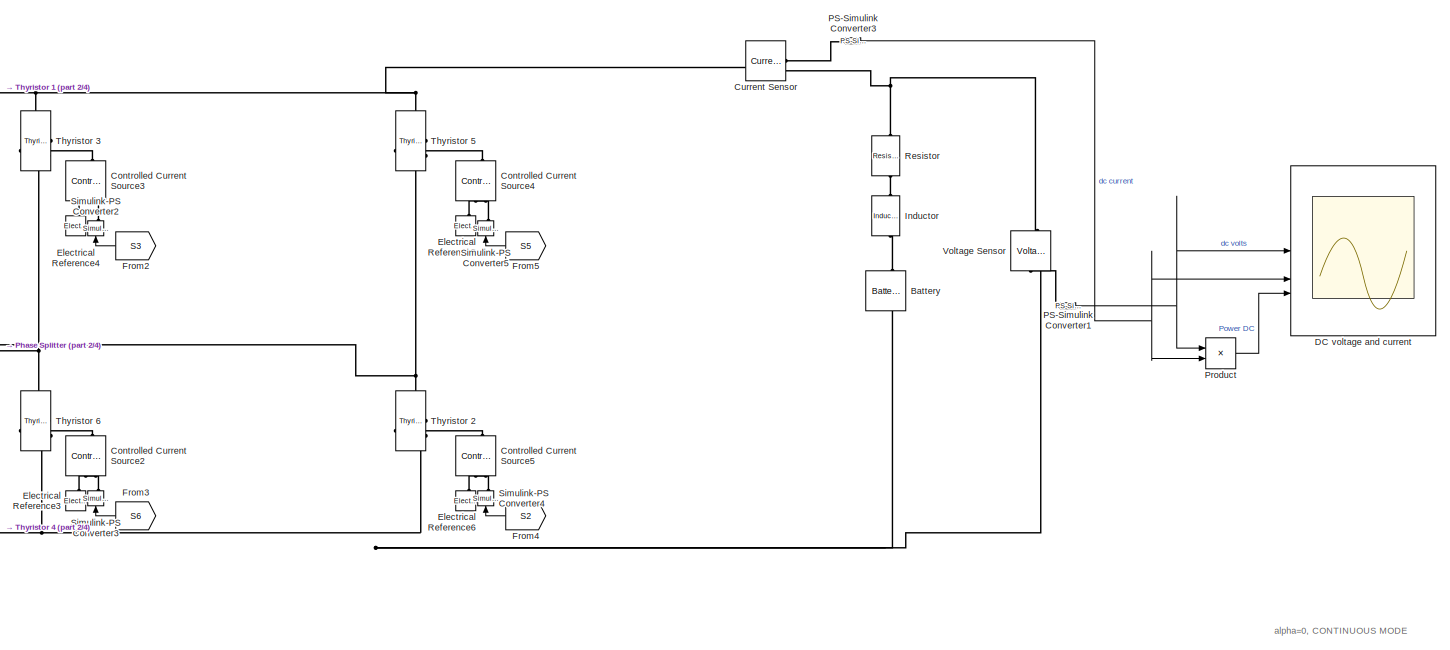
[diagram: root canvas - part 1/4, top center region]
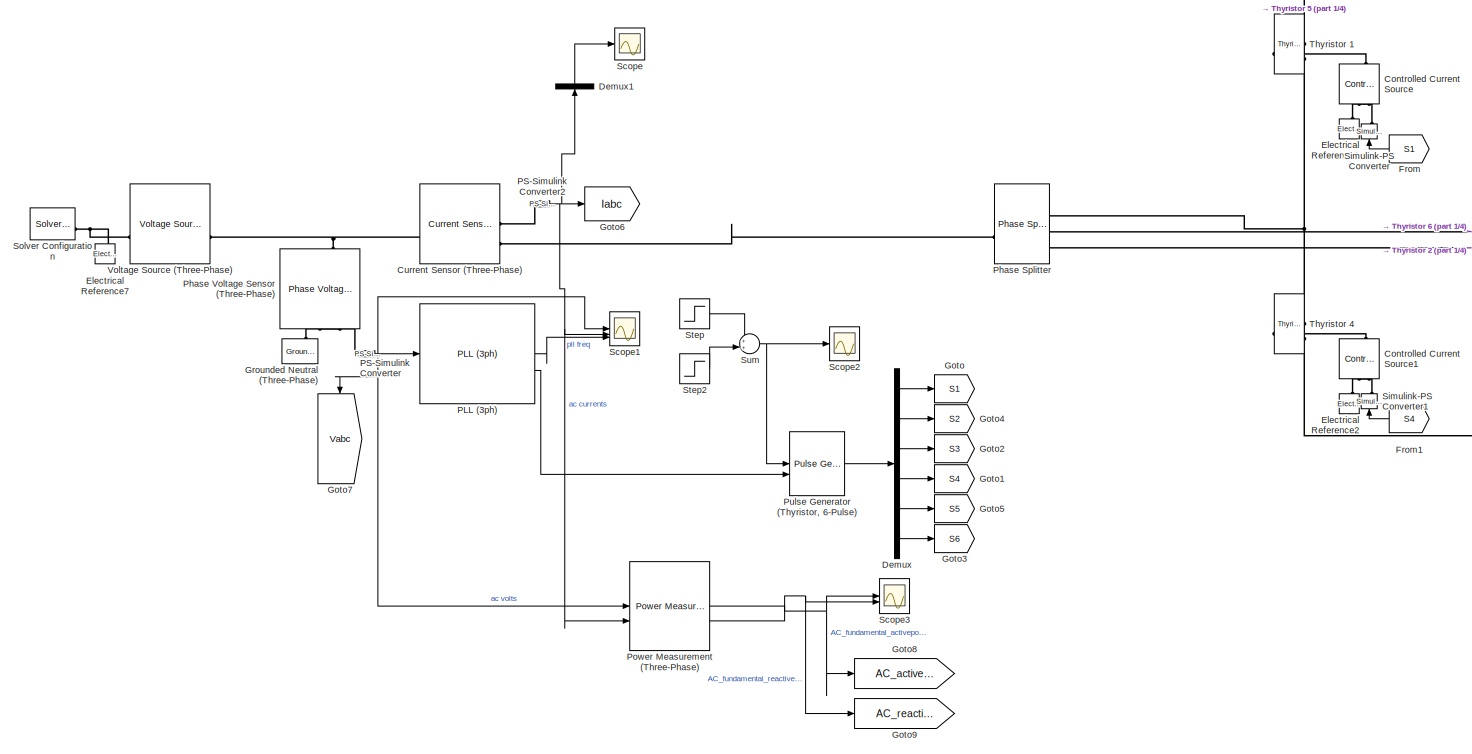
[diagram: root canvas - part 2/4, middle left region]
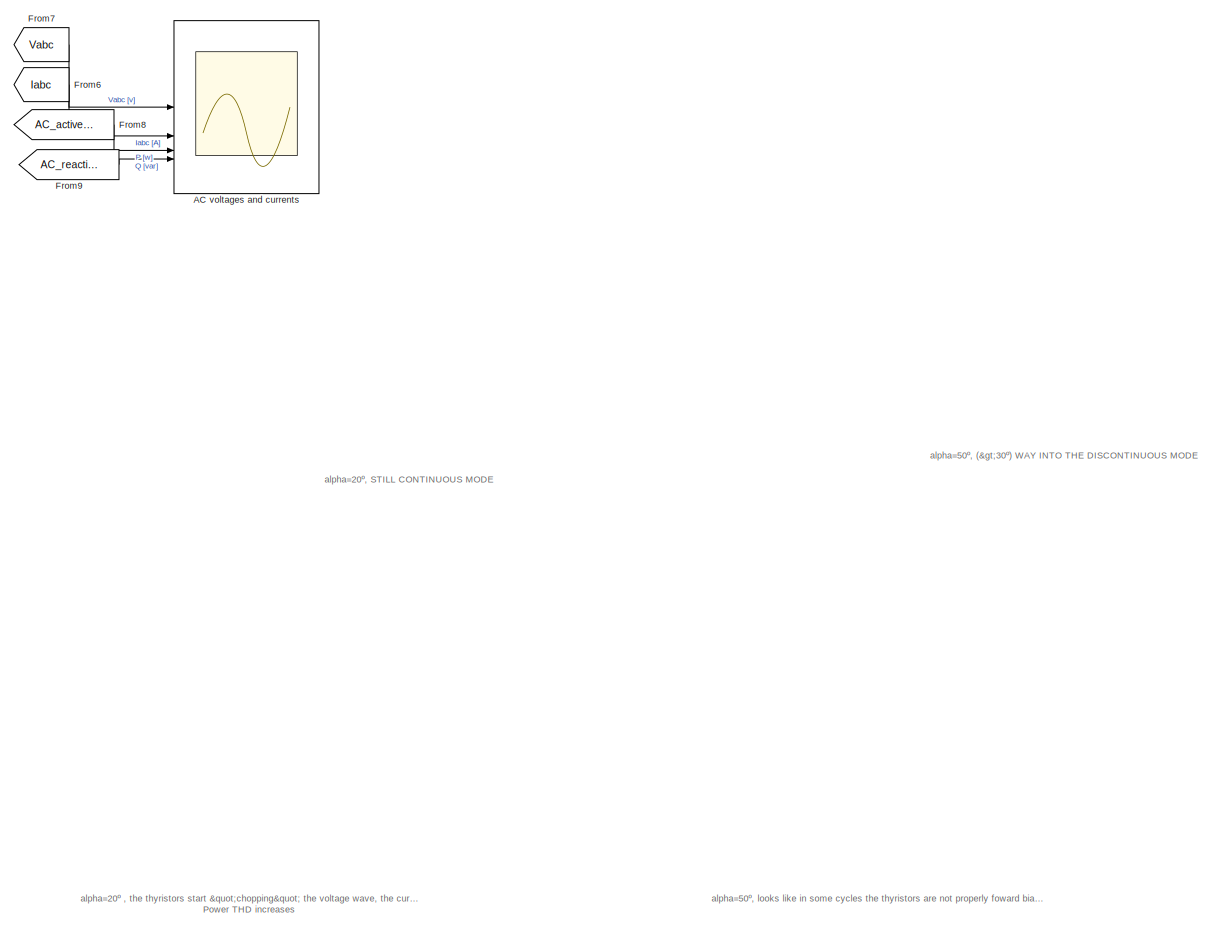
[diagram: root canvas - part 3/4, right side, full height]
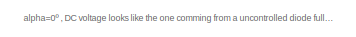
[diagram: root canvas - part 4/4, bottom center region]
MODEL slx_8790b56b9ad7
KIND model
CONFIG AbsTol = auto
CONFIG EnableMultiTasking = off
CONFIG FixedStep = 50e-6
CONFIG MaxStep = auto
CONFIG MinStep = auto
CONFIG RelTol = 1e-3
CONFIG SampleTimeConstraint = Unconstrained
CONFIG SolverName = ode1be
CONFIG StartTime = 0.0
CONFIG StopTime = sim_time
BLOCK [Scope] AC voltages and currents
  Floating = off
  NumInputPorts = 4
  ScopeSpecificationString = Simulink.scopes.TimeScopeBlockCfg('CurrentConfiguration', extmgr.ConfigurationSet(extmgr.Configuration('Core','General UI',true),extmgr.Configuration('Core','Source UI',true),extmgr.Configuration('Sources','WiredSimulink',true,'DataLoggingVariableName','ScopeData1'),extmgr.Configuration('Visuals','Time Domain',true,'SerializedDisplays',{struct('MinYLimReal','-6123.72436','MaxYLimReal','6123.72436'...<+3560ch>
BLOCK [Reference] Battery  REF=batteryecm_lib/Battery
  LibrarySourceBlock = ee_lib/Sources/Battery
  NameLocation = right
  SourceBlock = batteryecm_lib/Battery
  SourceType = Battery
BLOCK [Reference] Controlled Current Source  REF=fl_lib/Electrical/Electrical Sources/Controlled Current
Source
  NameLocation = right
  SourceBlock = fl_lib/Electrical/Electrical Sources/Controlled Current\nSource
  SourceType = Controlled Current\nSource
BLOCK [Reference] Controlled Current Source1  REF=fl_lib/Electrical/Electrical Sources/Controlled Current
Source
  NameLocation = right
  SourceBlock = fl_lib/Electrical/Electrical Sources/Controlled Current\nSource
  SourceType = Controlled Current\nSource
BLOCK [Reference] Controlled Current Source2  REF=fl_lib/Electrical/Electrical Sources/Controlled Current
Source
  NameLocation = right
  SourceBlock = fl_lib/Electrical/Electrical Sources/Controlled Current\nSource
  SourceType = Controlled Current\nSource
BLOCK [Reference] Controlled Current Source3  REF=fl_lib/Electrical/Electrical Sources/Controlled Current
Source
  NameLocation = right
  SourceBlock = fl_lib/Electrical/Electrical Sources/Controlled Current\nSource
  SourceType = Controlled Current\nSource
BLOCK [Reference] Controlled Current Source4  REF=fl_lib/Electrical/Electrical Sources/Controlled Current
Source
  NameLocation = right
  SourceBlock = fl_lib/Electrical/Electrical Sources/Controlled Current\nSource
  SourceType = Controlled Current\nSource
BLOCK [Reference] Controlled Current Source5  REF=fl_lib/Electrical/Electrical Sources/Controlled Current
Source
  NameLocation = right
  SourceBlock = fl_lib/Electrical/Electrical Sources/Controlled Current\nSource
  SourceType = Controlled Current\nSource
BLOCK [Reference] Current Sensor  REF=fl_lib/Electrical/Electrical Sensors/Current Sensor
  SourceBlock = fl_lib/Electrical/Electrical Sensors/Current Sensor
  SourceType = Current Sensor
BLOCK [Reference] Current Sensor (Three-Phase)  REF=ee_lib/Sensors &
Transducers/Current Sensor
(Three-Phase)
  SourceBlock = ee_lib/Sensors &\nTransducers/Current Sensor\n(Three-Phase)
  SourceType = Current Sensor\n(Three-Phase)
BLOCK [Scope] DC voltage and current
  Floating = off
  NumInputPorts = 3
  ScopeSpecificationString = Simulink.scopes.TimeScopeBlockCfg('CurrentConfiguration', extmgr.ConfigurationSet(extmgr.Configuration('Core','General UI',true),extmgr.Configuration('Core','Source UI',true),extmgr.Configuration('Sources','WiredSimulink',true),extmgr.Configuration('Visuals','Time Domain',true,'SerializedDisplays',{struct('MinYLimReal','-469.21119','MaxYLimReal','22158.81451','YLabelReal','','MinYLimMag',' 0.00000...<+2746ch>
BLOCK [Demux] Demux
  Outputs = 6
BLOCK [Demux] Demux1
  NameLocation = right
  Outputs = 3
BLOCK [Reference] Electrical Reference1  REF=fl_lib/Electrical/Electrical Elements/Electrical Reference
  NameLocation = right
  SourceBlock = fl_lib/Electrical/Electrical Elements/Electrical Reference
  SourceType = Electrical Reference
BLOCK [Reference] Electrical Reference2  REF=fl_lib/Electrical/Electrical Elements/Electrical Reference
  NameLocation = right
  SourceBlock = fl_lib/Electrical/Electrical Elements/Electrical Reference
  SourceType = Electrical Reference
BLOCK [Reference] Electrical Reference3  REF=fl_lib/Electrical/Electrical Elements/Electrical Reference
  NameLocation = right
  SourceBlock = fl_lib/Electrical/Electrical Elements/Electrical Reference
  SourceType = Electrical Reference
BLOCK [Reference] Electrical Reference4  REF=fl_lib/Electrical/Electrical Elements/Electrical Reference
  NameLocation = right
  SourceBlock = fl_lib/Electrical/Electrical Elements/Electrical Reference
  SourceType = Electrical Reference
BLOCK [Reference] Electrical Reference5  REF=fl_lib/Electrical/Electrical Elements/Electrical Reference
  NameLocation = right
  SourceBlock = fl_lib/Electrical/Electrical Elements/Electrical Reference
  SourceType = Electrical Reference
BLOCK [Reference] Electrical Reference6  REF=fl_lib/Electrical/Electrical Elements/Electrical Reference
  NameLocation = right
  SourceBlock = fl_lib/Electrical/Electrical Elements/Electrical Reference
  SourceType = Electrical Reference
BLOCK [Reference] Electrical Reference7  REF=fl_lib/Electrical/Electrical Elements/Electrical Reference
  NameLocation = right
  SourceBlock = fl_lib/Electrical/Electrical Elements/Electrical Reference
  SourceType = Electrical Reference
BLOCK [From] From
  GotoTag = S1
  NameLocation = top
BLOCK [From] From1
  GotoTag = S4
  NameLocation = top
BLOCK [From] From2
  GotoTag = S3
  NameLocation = top
BLOCK [From] From3
  GotoTag = S6
  NameLocation = top
BLOCK [From] From4
  GotoTag = S2
  NameLocation = top
BLOCK [From] From5
  GotoTag = S5
  NameLocation = top
BLOCK [From] From6
  GotoTag = Iabc
BLOCK [From] From7
  GotoTag = Vabc
BLOCK [From] From8
  GotoTag = AC_active_power
BLOCK [From] From9
  GotoTag = AC_reactive_power
BLOCK [Goto] Goto
  GotoTag = S1
  NameLocation = top
BLOCK [Goto] Goto1
  GotoTag = S4
  NameLocation = top
BLOCK [Goto] Goto2
  GotoTag = S3
  NameLocation = top
BLOCK [Goto] Goto3
  GotoTag = S6
  NameLocation = top
BLOCK [Goto] Goto4
  GotoTag = S2
  NameLocation = top
BLOCK [Goto] Goto5
  GotoTag = S5
  NameLocation = top
BLOCK [Goto] Goto6
  GotoTag = Iabc
  NameLocation = top
BLOCK [Goto] Goto7
  GotoTag = Vabc
  NameLocation = right
BLOCK [Goto] Goto8
  GotoTag = AC_active_power
  NameLocation = top
BLOCK [Goto] Goto9
  GotoTag = AC_reactive_power
  NameLocation = top
BLOCK [Reference] Grounded Neutral (Three-Phase)  REF=ee_lib/Connectors &
References/Grounded Neutral
(Three-Phase)
  NameLocation = right
  SourceBlock = ee_lib/Connectors &\nReferences/Grounded Neutral\n(Three-Phase)
  SourceType = Grounded Neutral\n(Three-Phase)
BLOCK [Reference] Inductor  REF=fl_lib/Electrical/Electrical Elements/Inductor
  NameLocation = left
  SourceBlock = fl_lib/Electrical/Electrical Elements/Inductor
  SourceType = Inductor
BLOCK [Reference] PLL (3ph)  REF=spsPLL3phLib/PLL
(3ph)
  LibrarySourceBlock = sps_lib/Control/PLL\n(3ph)
  SourceBlock = spsPLL3phLib/PLL\n(3ph)
  SourceType = PLL (3ph)
BLOCK [Reference] PS-Simulink Converter  REF=nesl_utility/PS-Simulink
Converter
  SourceBlock = nesl_utility/PS-Simulink\nConverter
  SourceType = PS-Simulink\nConverter
BLOCK [Reference] PS-Simulink Converter1  REF=nesl_utility/PS-Simulink
Converter
  SourceBlock = nesl_utility/PS-Simulink\nConverter
  SourceType = PS-Simulink\nConverter
BLOCK [Reference] PS-Simulink Converter2  REF=nesl_utility/PS-Simulink
Converter
  SourceBlock = nesl_utility/PS-Simulink\nConverter
  SourceType = PS-Simulink\nConverter
BLOCK [Reference] PS-Simulink Converter3  REF=nesl_utility/PS-Simulink
Converter
  SourceBlock = nesl_utility/PS-Simulink\nConverter
  SourceType = PS-Simulink\nConverter
BLOCK [Reference] Phase Splitter  REF=ee_lib/Connectors &
References/Phase Splitter
  SourceBlock = ee_lib/Connectors &\nReferences/Phase Splitter
  SourceType = Phase Splitter
BLOCK [Reference] Phase Voltage Sensor (Three-Phase)  REF=ee_lib/Sensors &
Transducers/Phase Voltage Sensor
(Three-Phase)
  NameLocation = left
  SourceBlock = ee_lib/Sensors &\nTransducers/Phase Voltage Sensor\n(Three-Phase)
  SourceType = Phase Voltage Sensor\n(Three-Phase)
BLOCK [Reference] Power Measurement (Three-Phase)  REF=eePowerMeasurement/Power Measurement
(Three-Phase)
  LibrarySourceBlock = ee_sl_lib/Measurements/Power Measurement\n(Three-Phase)
  SourceBlock = eePowerMeasurement/Power Measurement\n(Three-Phase)
  SourceType = Power Measurement (Three-Phase)
BLOCK [Product] Product
BLOCK [Reference] Pulse Generator (Thyristor, 6-Pulse)  REF=spsPulseGeneratorThyristor6PulseLib/Pulse Generator
(Thyristor, 6-Pulse)
  LibrarySourceBlock = sps_lib/Power Electronics/Power Electronics Control/Pulse Generator\n(Thyristor, 6-Pulse)
  SourceBlock = spsPulseGeneratorThyristor6PulseLib/Pulse Generator\n(Thyristor, 6-Pulse)
  SourceType = Pulse Generator (Thyristor)
BLOCK [Reference] Resistor  REF=fl_lib/Electrical/Electrical Elements/Resistor
  NameLocation = left
  SourceBlock = fl_lib/Electrical/Electrical Elements/Resistor
  SourceType = Resistor
BLOCK [Scope] Scope
  Floating = off
  NumInputPorts = 1
  ScopeSpecificationString = Simulink.scopes.TimeScopeBlockCfg('CurrentConfiguration', extmgr.ConfigurationSet(extmgr.Configuration('Core','General UI',true),extmgr.Configuration('Core','Source UI',true),extmgr.Configuration('Sources','WiredSimulink',true,'DataLoggingVariableName','ScopeData1'),extmgr.Configuration('Visuals','Time Domain',true,'SerializedDisplays',{struct('MinYLimReal','-1188.18285','MaxYLimReal','1209.98526'...<+1489ch>
BLOCK [Scope] Scope1
  Floating = off
  NumInputPorts = 3
  ScopeSpecificationString = Simulink.scopes.TimeScopeBlockCfg('CurrentConfiguration', extmgr.ConfigurationSet(extmgr.Configuration('Core','General UI',true),extmgr.Configuration('Core','Source UI',true),extmgr.Configuration('Sources','WiredSimulink',true,'DataLoggingVariableName','ScopeData1'),extmgr.Configuration('Visuals','Time Domain',true,'SerializedDisplays',{struct('MinYLimReal','-9928.06491','MaxYLimReal','9213.81564'...<+2980ch>
BLOCK [Scope] Scope2
  Floating = off
  NumInputPorts = 1
  ScopeSpecificationString = Simulink.scopes.TimeScopeBlockCfg('CurrentConfiguration', extmgr.ConfigurationSet(extmgr.Configuration('Core','General UI',true),extmgr.Configuration('Core','Source UI',true),extmgr.Configuration('Sources','WiredSimulink',true,'DataLoggingVariableName','ScopeData2'),extmgr.Configuration('Visuals','Time Domain',true,'SerializedDisplays',{struct('MinYLimReal','-6.25','MaxYLimReal','56.25','YLabelRea...<+1471ch>
BLOCK [Scope] Scope3
  Floating = off
  NumInputPorts = 2
  ScopeSpecificationString = Simulink.scopes.TimeScopeBlockCfg('CurrentConfiguration', extmgr.ConfigurationSet(extmgr.Configuration('Core','General UI',true),extmgr.Configuration('Core','Source UI',true),extmgr.Configuration('Sources','WiredSimulink',true,'DataLoggingVariableName','ScopeData3'),extmgr.Configuration('Visuals','Time Domain',true,'SerializedDisplays',{struct('MinYLimReal','-15685504.98971','MaxYLimReal','1411695...<+2192ch>
BLOCK [Reference] Simulink-PS Converter  REF=nesl_utility/Simulink-PS
Converter
  NameLocation = right
  SourceBlock = nesl_utility/Simulink-PS\nConverter
  SourceType = Simulink-PS\nConverter
BLOCK [Reference] Simulink-PS Converter1  REF=nesl_utility/Simulink-PS
Converter
  NameLocation = right
  SourceBlock = nesl_utility/Simulink-PS\nConverter
  SourceType = Simulink-PS\nConverter
BLOCK [Reference] Simulink-PS Converter2  REF=nesl_utility/Simulink-PS
Converter
  NameLocation = right
  SourceBlock = nesl_utility/Simulink-PS\nConverter
  SourceType = Simulink-PS\nConverter
BLOCK [Reference] Simulink-PS Converter3  REF=nesl_utility/Simulink-PS
Converter
  NameLocation = right
  SourceBlock = nesl_utility/Simulink-PS\nConverter
  SourceType = Simulink-PS\nConverter
BLOCK [Reference] Simulink-PS Converter4  REF=nesl_utility/Simulink-PS
Converter
  NameLocation = right
  SourceBlock = nesl_utility/Simulink-PS\nConverter
  SourceType = Simulink-PS\nConverter
BLOCK [Reference] Simulink-PS Converter5  REF=nesl_utility/Simulink-PS
Converter
  NameLocation = right
  SourceBlock = nesl_utility/Simulink-PS\nConverter
  SourceType = Simulink-PS\nConverter
BLOCK [Reference] Solver Configuration  REF=nesl_utility/Solver
Configuration
  SourceBlock = nesl_utility/Solver\nConfiguration
  SourceType = Solver\nConfiguration
BLOCK [Step] Step
  After = alpha1
  SampleTime = 0
  Time = alpha_steptime1
BLOCK [Step] Step2
  After = alpha2-alpha1
  SampleTime = 0
  Time = alpha_steptime2
BLOCK [Sum] Sum
BLOCK [Reference] Thyristor 1  REF=ee_lib/Semiconductors &
Converters/Thyristor
  NameLocation = top
  SourceBlock = ee_lib/Semiconductors &\nConverters/Thyristor
  SourceType = Thyristor
BLOCK [Reference] Thyristor 2  REF=ee_lib/Semiconductors &
Converters/Thyristor
  NameLocation = top
  SourceBlock = ee_lib/Semiconductors &\nConverters/Thyristor
  SourceType = Thyristor
BLOCK [Reference] Thyristor 3  REF=ee_lib/Semiconductors &
Converters/Thyristor
  NameLocation = top
  SourceBlock = ee_lib/Semiconductors &\nConverters/Thyristor
  SourceType = Thyristor
BLOCK [Reference] Thyristor 4   REF=ee_lib/Semiconductors &
Converters/Thyristor
  NameLocation = top
  SourceBlock = ee_lib/Semiconductors &\nConverters/Thyristor
  SourceType = Thyristor
BLOCK [Reference] Thyristor 5  REF=ee_lib/Semiconductors &
Converters/Thyristor
  NameLocation = top
  SourceBlock = ee_lib/Semiconductors &\nConverters/Thyristor
  SourceType = Thyristor
BLOCK [Reference] Thyristor 6  REF=ee_lib/Semiconductors &
Converters/Thyristor
  NameLocation = top
  SourceBlock = ee_lib/Semiconductors &\nConverters/Thyristor
  SourceType = Thyristor
BLOCK [Reference] Voltage Sensor  REF=fl_lib/Electrical/Electrical Sensors/Voltage Sensor
  NameLocation = left
  SourceBlock = fl_lib/Electrical/Electrical Sensors/Voltage Sensor
  SourceType = Voltage Sensor
BLOCK [Reference] Voltage Source (Three-Phase)  REF=ee_lib/Sources/Voltage
Source
(Three-Phase)
  SourceBlock = ee_lib/Sources/Voltage\nSource\n(Three-Phase)
  SourceType = Voltage\nSource\n(Three-Phase)
ANNOTATION (root): alpha=0, CONTINUOUS MODE
ANNOTATION (root): alpha=0º , DC voltage looks like the one comming from a uncontrolled diode full bridge rectifier, Curent and Power delivered to the load are maximum, Power THD is minimum.
ANNOTATION (root): alpha=20º , the thyristors start "chopping" the voltage wave, the current and power are almost halved. Power THD increases
ANNOTATION (root): alpha=20º, STILL CONTINUOUS MODE
ANNOTATION (root): alpha=50º, (>30º) WAY INTO THE DISCONTINUOUS MODE
ANNOTATION (root): alpha=50º, looks like in some cycles the thyristors are not properly foward biased and they miss the trigger
LINE Demux1:2 -> Scope:1
LINE Demux:1 -> Goto:1
LINE Demux:2 -> Goto4:1
LINE Demux:3 -> Goto2:1
LINE Demux:4 -> Goto1:1
LINE Demux:5 -> Goto5:1
LINE Demux:6 -> Goto3:1
LINE From1:1 -> Simulink-PS Converter1:1
LINE From2:1 -> Simulink-PS Converter2:1
LINE From3:1 -> Simulink-PS Converter3:1
LINE From4:1 -> Simulink-PS Converter4:1
LINE From5:1 -> Simulink-PS Converter5:1
LINE From6:1 -> AC voltages and currents:2
LINE From7:1 -> AC voltages and currents:1
LINE From8:1 -> AC voltages and currents:3
LINE From9:1 -> AC voltages and currents:4
LINE From:1 -> Simulink-PS Converter:1
LINE PLL (3ph):1 -> Scope1:3
LINE PLL (3ph):2 -> Pulse Generator (Thyristor, 6-Pulse):2
NET PS-Simulink Converter1:1 -> DC voltage and current:1, Product:1
NET PS-Simulink Converter2:1 -> Demux1:1, Goto6:1, Power Measurement (Three-Phase):2, Scope1:2
NET PS-Simulink Converter3:1 -> DC voltage and current:2, Product:2
NET PS-Simulink Converter:1 -> Goto7:1, PLL (3ph):1, Power Measurement (Three-Phase):1, Scope1:1
NET Power Measurement (Three-Phase):1 -> Goto8:1, Scope3:1
NET Power Measurement (Three-Phase):2 -> Goto9:1, Scope3:2
LINE Product:1 -> DC voltage and current:3
LINE Pulse Generator (Thyristor, 6-Pulse):1 -> Demux:1
LINE Step2:1 -> Sum:2
LINE Step:1 -> Sum:1
NET Sum:1 -> Pulse Generator (Thyristor, 6-Pulse):1, Scope2:1
PLINE Battery:LConn1 -- Inductor:RConn1
PNET net1: Battery:RConn1 -- Thyristor 2:RConn1 -- Thyristor 4 :RConn1 -- Thyristor 6:RConn1 -- Voltage Sensor:RConn2
PLINE Controlled Current Source1:LConn1 -- Thyristor 4 :LConn1
PLINE Controlled Current Source1:RConn1 -- Simulink-PS Converter1:RConn1
PLINE Controlled Current Source1:RConn2 -- Electrical Reference2:LConn1
PLINE Controlled Current Source2:LConn1 -- Thyristor 6:LConn1
PLINE Controlled Current Source2:RConn1 -- Simulink-PS Converter3:RConn1
PLINE Controlled Current Source2:RConn2 -- Electrical Reference3:LConn1
PLINE Controlled Current Source3:LConn1 -- Thyristor 3:LConn1
PLINE Controlled Current Source3:RConn1 -- Simulink-PS Converter2:RConn1
PLINE Controlled Current Source3:RConn2 -- Electrical Reference4:LConn1
PLINE Controlled Current Source4:LConn1 -- Thyristor 5:LConn1
PLINE Controlled Current Source4:RConn1 -- Simulink-PS Converter5:RConn1
PLINE Controlled Current Source4:RConn2 -- Electrical Reference5:LConn1
PLINE Controlled Current Source5:LConn1 -- Thyristor 2:LConn1
PLINE Controlled Current Source5:RConn1 -- Simulink-PS Converter4:RConn1
PLINE Controlled Current Source5:RConn2 -- Electrical Reference6:LConn1
PLINE Controlled Current Source:LConn1 -- Thyristor 1:LConn1
PLINE Controlled Current Source:RConn1 -- Simulink-PS Converter:RConn1
PLINE Controlled Current Source:RConn2 -- Electrical Reference1:LConn1
PNET net2: Current Sensor (Three-Phase):LConn1 -- Phase Voltage Sensor (Three-Phase):LConn1 -- Voltage Source (Three-Phase):RConn1
PLINE Current Sensor (Three-Phase):RConn1 -- PS-Simulink Converter2:LConn1
PLINE Current Sensor (Three-Phase):RConn2 -- Phase Splitter:LConn1
PNET net3: Current Sensor:LConn1 -- Thyristor 1:RConn2 -- Thyristor 3:RConn2 -- Thyristor 5:RConn2
PLINE Current Sensor:RConn1 -- PS-Simulink Converter3:LConn1
PNET net4: Current Sensor:RConn2 -- Resistor:LConn1 -- Voltage Sensor:LConn1
PNET net5: Electrical Reference7:LConn1 -- Solver Configuration:RConn1 -- Voltage Source (Three-Phase):LConn1
PLINE Grounded Neutral (Three-Phase):LConn1 -- Phase Voltage Sensor (Three-Phase):RConn2
PLINE Inductor:LConn1 -- Resistor:RConn1
PLINE PS-Simulink Converter1:LConn1 -- Voltage Sensor:RConn1
PLINE PS-Simulink Converter:LConn1 -- Phase Voltage Sensor (Three-Phase):RConn1
PNET net6: Phase Splitter:RConn1 -- Thyristor 1:RConn1 -- Thyristor 4 :RConn2
PNET net7: Phase Splitter:RConn2 -- Thyristor 3:RConn1 -- Thyristor 6:RConn2
PNET net8: Phase Splitter:RConn3 -- Thyristor 2:RConn2 -- Thyristor 5:RConn1
note: NET lines group one-source signal fan-out (src -> all destinations, sorted); 1:1 wires keep LINE; PNET lines group multi-terminal physical nets as a canonical sorted terminal list (undirected conserving connections); 2-terminal nets keep the pairwise PLINE form
